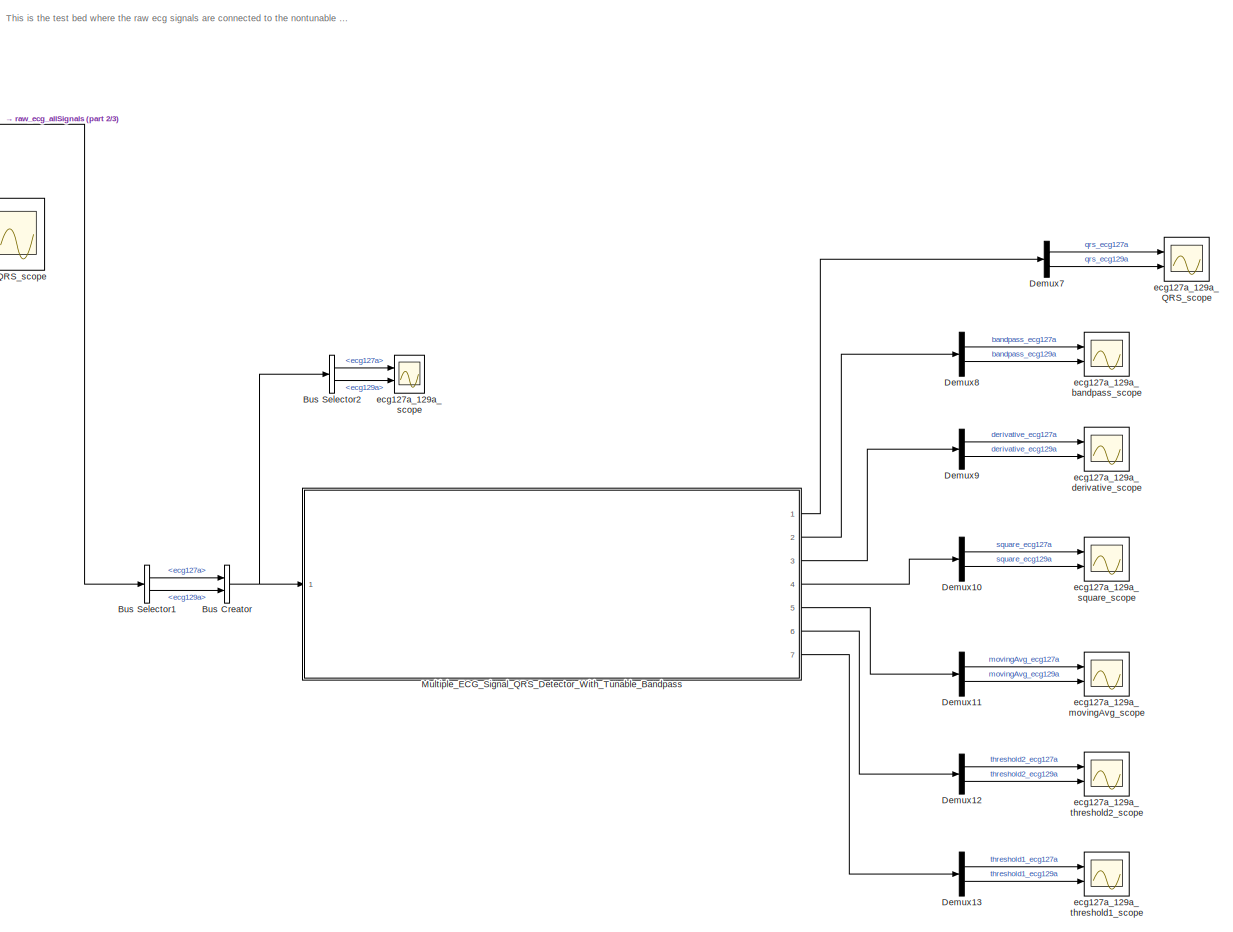
[diagram: root canvas - part 1/3, right side, full height]
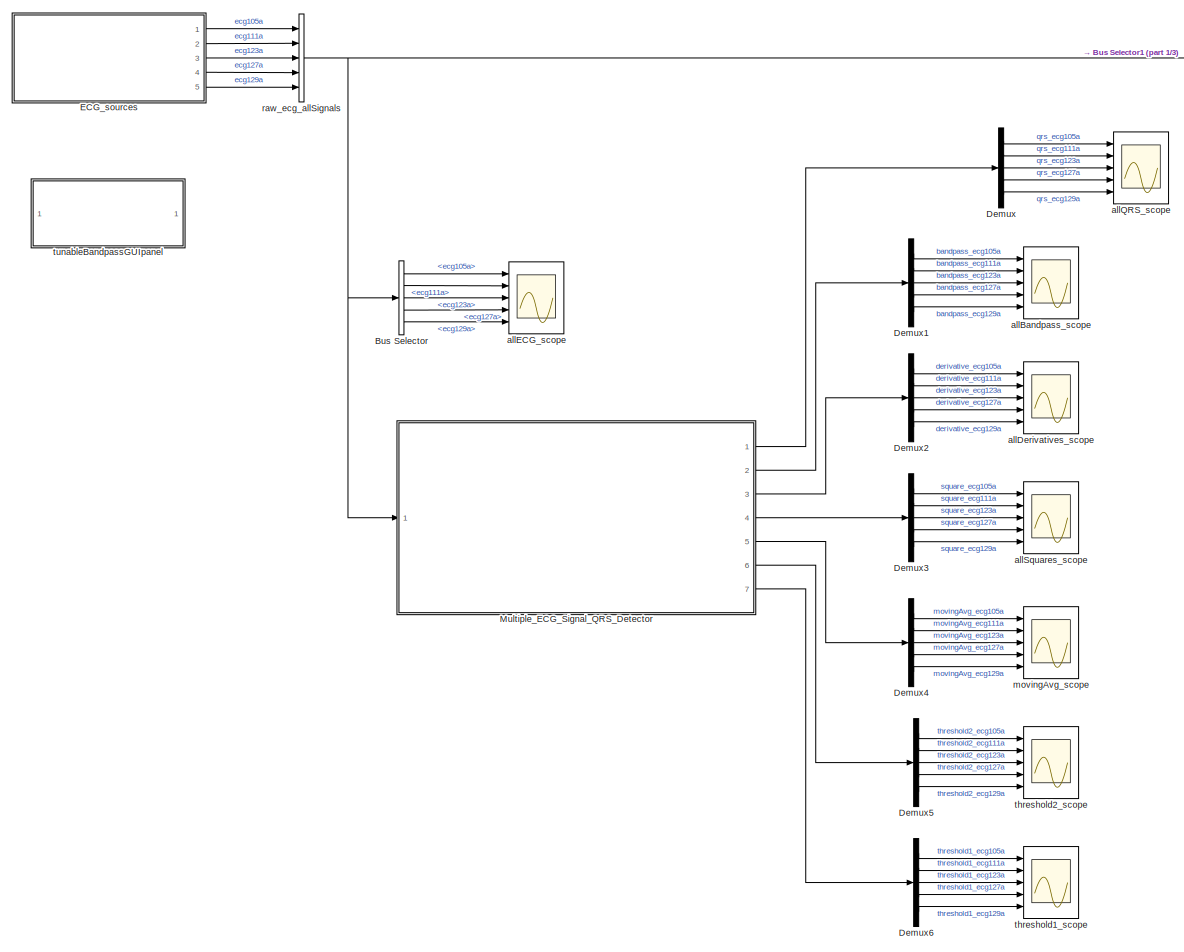
[diagram: root canvas - part 2/3, left side, full height]
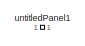
[diagram: root canvas - part 3/3, middle left region]
MODEL slx_71d7068191bd
KIND model
CONFIG AbsTol = auto
CONFIG EnableMultiTasking = off
CONFIG FixedStep = .004
CONFIG MaxStep = auto
CONFIG MinStep = auto
CONFIG RelTol = 1e-3
CONFIG SampleTimeConstraint = Unconstrained
CONFIG SolverName = FixedStepDiscrete
CONFIG StartTime = 0.0
CONFIG StopTime = 60
BLOCK [BusCreator] Bus Creator
  DisplayOption = bar
  InheritFromInputs = on
  Inputs = 2
  NonVirtualBus = on
  OutDataTypeStr = Bus: bottom2_raw_ecg_signals
  Ports = [2, 1]
BLOCK [BusSelector] Bus Selector
  OutputSignals = ecg105a,ecg111a,ecg123a,ecg127a,ecg129a
  Ports = [1, 5]
BLOCK [BusSelector] Bus Selector1
  OutputSignals = ecg127a,ecg129a
  Ports = [1, 2]
BLOCK [BusSelector] Bus Selector2
  OutputSignals = ecg127a,ecg129a
  Ports = [1, 2]
BLOCK [Demux] Demux
  Outputs = 5
  Ports = [1, 5]
BLOCK [Demux] Demux1
  Outputs = 5
  Ports = [1, 5]
BLOCK [Demux] Demux10
  Outputs = 2
  Ports = [1, 2]
BLOCK [Demux] Demux11
  Outputs = 2
  Ports = [1, 2]
BLOCK [Demux] Demux12
  Outputs = 2
  Ports = [1, 2]
BLOCK [Demux] Demux13
  Outputs = 2
  Ports = [1, 2]
BLOCK [Demux] Demux2
  Outputs = 5
  Ports = [1, 5]
BLOCK [Demux] Demux3
  Outputs = 5
  Ports = [1, 5]
BLOCK [Demux] Demux4
  Outputs = 5
  Ports = [1, 5]
BLOCK [Demux] Demux5
  Outputs = 5
  Ports = [1, 5]
BLOCK [Demux] Demux6
  Outputs = 5
  Ports = [1, 5]
BLOCK [Demux] Demux7
  Outputs = 2
  Ports = [1, 2]
BLOCK [Demux] Demux8
  Outputs = 2
  Ports = [1, 2]
BLOCK [Demux] Demux9
  Outputs = 2
  Ports = [1, 2]
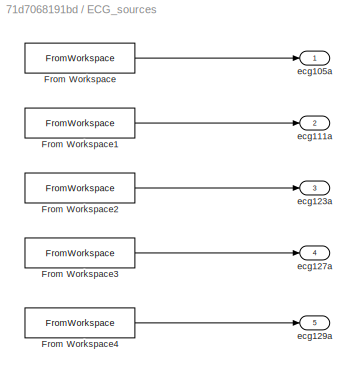
BLOCK [SubSystem] ECG_sources
  Ports = [0, 5]
  RequestExecContextInheritance = off
BLOCK [FromWorkspace] ECG_sources/From Workspace
  VariableName = ts_ecg105a
BLOCK [FromWorkspace] ECG_sources/From Workspace1
  VariableName = ts_ecg111a
BLOCK [FromWorkspace] ECG_sources/From Workspace2
  VariableName = ts_ecg123a
BLOCK [FromWorkspace] ECG_sources/From Workspace3
  VariableName = ts_ecg127a
BLOCK [FromWorkspace] ECG_sources/From Workspace4
  VariableName = ts_ecg129a
BLOCK [Outport] ECG_sources/ecg105a
BLOCK [Outport] ECG_sources/ecg111a
  Port = 2
BLOCK [Outport] ECG_sources/ecg123a
  Port = 3
BLOCK [Outport] ECG_sources/ecg127a
  Port = 4
BLOCK [Outport] ECG_sources/ecg129a
  Port = 5
BLOCK [SubSystem] Multiple_ECG_Signal_QRS_Detector 
  Ports = [1, 7]
  ReferencedSubsystem = Multiple_ECG_Signal_QRS_Detector
  RequestExecContextInheritance = off
  TreatAsAtomicUnit = on
BLOCK [SubSystem] Multiple_ECG_Signal_QRS_Detector_With_Tunable_Bandpass
  Ports = [1, 7]
  ReferencedSubsystem = Multiple_ECG_Signal_QRS_Detector_With_Tunable_Bandpass
  RequestExecContextInheritance = off
  TreatAsAtomicUnit = on
BLOCK [Scope] allBandpass_scope
  Description = Displays the ecg signals with higher frequency and lower frequency components attenuated.for the following signals:\necg105a\necg111a\necg123a\necg127a\necg129a
  Floating = off
  NumInputPorts = 5
  Ports = [5]
  ScopeSpecificationString = Simulink.scopes.TimeScopeBlockCfg('CurrentConfiguration', extmgr.ConfigurationSet(extmgr.Configuration('Core','General UI',true),extmgr.Configuration('Core','Source UI',true),extmgr.Configuration('Sources','WiredSimulink',true,'DataLoggingVariableName','ScopeData2'),extmgr.Configuration('Visuals','Time Domain',true,'SerializedDisplays',{struct('MinYLimReal','-0.2295','MaxYLimReal','0.31455','YLabe...<+4198ch>
BLOCK [Scope] allDerivatives_scope
  Floating = off
  NumInputPorts = 5
  Ports = [5]
  ScopeSpecificationString = Simulink.scopes.TimeScopeBlockCfg('CurrentConfiguration', extmgr.ConfigurationSet(extmgr.Configuration('Core','General UI',true),extmgr.Configuration('Core','Source UI',true),extmgr.Configuration('Sources','WiredSimulink',true,'DataLoggingVariableName','ScopeData3'),extmgr.Configuration('Visuals','Time Domain',true,'SerializedDisplays',{struct('MinYLimReal','-25.17851','MaxYLimReal','24.02142','YL...<+4217ch>
BLOCK [Scope] allECG_scope
  Floating = off
  NumInputPorts = 5
  Ports = [5]
  ScopeSpecificationString = Simulink.scopes.TimeScopeBlockCfg('CurrentConfiguration', extmgr.ConfigurationSet(extmgr.Configuration('Core','General UI',true),extmgr.Configuration('Core','Source UI',true),extmgr.Configuration('Sources','WiredSimulink',true),extmgr.Configuration('Visuals','Time Domain',true,'SerializedDisplays',{struct('MinYLimReal','0.49913','MaxYLimReal','1.50787','YLabelReal','','MinYLimMag','0.49913','MaxYL...<+4148ch>
BLOCK [Scope] allQRS_scope
  Description = Before 3.6 seconds:\nDisplays 0 during startup.\nAfter 3.6 seconds:\nDisplays a 1 when a QRS wave is detected.\nDisplays a 0 when no QRS wave is detected.\nDisplays the QRS wave detection for the following signals:\necg105a\necg111a\necg123a\necg127a\necg129a
  Floating = off
  NumInputPorts = 5
  Ports = [5]
  ScopeSpecificationString = Simulink.scopes.TimeScopeBlockCfg('CurrentConfiguration', extmgr.ConfigurationSet(extmgr.Configuration('Core','General UI',true),extmgr.Configuration('Core','Source UI',true),extmgr.Configuration('Sources','WiredSimulink',true,'DataLoggingVariableName','ScopeData1'),extmgr.Configuration('Visuals','Time Domain',true,'SerializedDisplays',{struct('MinYLimReal','-0.125','MaxYLimReal','1.125','YLabelRe...<+4152ch>
BLOCK [Scope] allSquares_scope
  Floating = off
  NumInputPorts = 5
  Ports = [5]
  ScopeSpecificationString = Simulink.scopes.TimeScopeBlockCfg('CurrentConfiguration', extmgr.ConfigurationSet(extmgr.Configuration('Core','General UI',true),extmgr.Configuration('Core','Source UI',true),extmgr.Configuration('Sources','WiredSimulink',true,'DataLoggingVariableName','ScopeData4'),extmgr.Configuration('Visuals','Time Domain',true,'SerializedDisplays',{struct('MinYLimReal','-51.30094','MaxYLimReal','461.70849','Y...<+4208ch>
BLOCK [Scope] ecg127a_129a_QRS_scope
  Description = Before 3.6 seconds:\nDisplays 0 during startup.\nAfter 3.6 seconds:\nDisplays a 1 when a QRS wave is detected.\nDisplays a 0 when no QRS wave is detected.\nDisplays the QRS wave detection for the following signals:\necg127a\necg129a
  Floating = off
  NumInputPorts = 2
  Ports = [2]
  ScopeSpecificationString = Simulink.scopes.TimeScopeBlockCfg('CurrentConfiguration', extmgr.ConfigurationSet(extmgr.Configuration('Core','General UI',true),extmgr.Configuration('Core','Source UI',true),extmgr.Configuration('Sources','WiredSimulink',true,'DataLoggingVariableName','ScopeData13'),extmgr.Configuration('Visuals','Time Domain',true,'SerializedDisplays',{struct('MinYLimReal','-0.125','MaxYLimReal','1.125','YLabelR...<+2060ch>
BLOCK [Scope] ecg127a_129a_bandpass_scope
  Description = Displays the ecg signals with higher frequency and lower frequency components attenuated.for the following signals:\necg127a\necg129a
  Floating = off
  NumInputPorts = 2
  Ports = [2]
  ScopeSpecificationString = Simulink.scopes.TimeScopeBlockCfg('CurrentConfiguration', extmgr.ConfigurationSet(extmgr.Configuration('Core','General UI',true),extmgr.Configuration('Core','Source UI',true),extmgr.Configuration('Sources','WiredSimulink',true,'DataLoggingVariableName','ScopeData15'),extmgr.Configuration('Visuals','Time Domain',true,'SerializedDisplays',{struct('MinYLimReal','-0.88986','MaxYLimReal','0.94555','YLa...<+2082ch>
BLOCK [Scope] ecg127a_129a_derivative_scope
  Floating = off
  NumInputPorts = 2
  Ports = [2]
  ScopeSpecificationString = Simulink.scopes.TimeScopeBlockCfg('CurrentConfiguration', extmgr.ConfigurationSet(extmgr.Configuration('Core','General UI',true),extmgr.Configuration('Core','Source UI',true),extmgr.Configuration('Sources','WiredSimulink',true,'DataLoggingVariableName','ScopeData14'),extmgr.Configuration('Visuals','Time Domain',true,'SerializedDisplays',{struct('MinYLimReal','-42.79359','MaxYLimReal','39.36542','Y...<+2003ch>
BLOCK [Scope] ecg127a_129a_movingAvg_scope
  Floating = off
  NumInputPorts = 2
  Ports = [2]
  ScopeSpecificationString = Simulink.scopes.TimeScopeBlockCfg('CurrentConfiguration', extmgr.ConfigurationSet(extmgr.Configuration('Core','General UI',true),extmgr.Configuration('Core','Source UI',true),extmgr.Configuration('Sources','WiredSimulink',true,'DataLoggingVariableName','ScopeData9'),extmgr.Configuration('Visuals','Time Domain',true,'SerializedDisplays',{struct('MinYLimReal','-70.68408','MaxYLimReal','636.29492','Y...<+2056ch>
BLOCK [Scope] ecg127a_129a_scope
  Floating = off
  NumInputPorts = 2
  Ports = [2]
  ScopeSpecificationString = Simulink.scopes.TimeScopeBlockCfg('CurrentConfiguration', extmgr.ConfigurationSet(extmgr.Configuration('Core','General UI',true),extmgr.Configuration('Core','Source UI',true),extmgr.Configuration('Sources','WiredSimulink',true,'DataLoggingVariableName','ScopeData1'),extmgr.Configuration('Visuals','Time Domain',true,'SerializedDisplays',{struct('MinYLimReal','-1.895','MaxYLimReal','0.905','YLabelRe...<+2063ch>
BLOCK [Scope] ecg127a_129a_square_scope
  Floating = off
  NumInputPorts = 2
  Ports = [2]
  ScopeSpecificationString = Simulink.scopes.TimeScopeBlockCfg('CurrentConfiguration', extmgr.ConfigurationSet(extmgr.Configuration('Core','General UI',true),extmgr.Configuration('Core','Source UI',true),extmgr.Configuration('Sources','WiredSimulink',true,'DataLoggingVariableName','ScopeData8'),extmgr.Configuration('Visuals','Time Domain',true,'SerializedDisplays',{struct('MinYLimReal','-149.4521','MaxYLimReal','1345.06888','...<+2035ch>
BLOCK [Scope] ecg127a_129a_threshold1_scope
  Floating = off
  NumInputPorts = 2
  Ports = [2]
  ScopeSpecificationString = Simulink.scopes.TimeScopeBlockCfg('CurrentConfiguration', extmgr.ConfigurationSet(extmgr.Configuration('Core','General UI',true),extmgr.Configuration('Core','Source UI',true),extmgr.Configuration('Sources','WiredSimulink',true,'DataLoggingVariableName','ScopeData11'),extmgr.Configuration('Visuals','Time Domain',true,'SerializedDisplays',{struct('MinYLimReal','-0.125','MaxYLimReal','1.125','YLabelR...<+2434ch>
BLOCK [Scope] ecg127a_129a_threshold2_scope
  Floating = off
  NumInputPorts = 2
  Ports = [2]
  ScopeSpecificationString = Simulink.scopes.TimeScopeBlockCfg('CurrentConfiguration', extmgr.ConfigurationSet(extmgr.Configuration('Core','General UI',true),extmgr.Configuration('Core','Source UI',true),extmgr.Configuration('Sources','WiredSimulink',true,'DataLoggingVariableName','ScopeData10'),extmgr.Configuration('Visuals','Time Domain',true,'SerializedDisplays',{struct('MinYLimReal','-0.125','MaxYLimReal','1.125','YLabelR...<+2434ch>
BLOCK [Scope] movingAvg_scope
  Floating = off
  NumInputPorts = 5
  Ports = [5]
  ScopeSpecificationString = Simulink.scopes.TimeScopeBlockCfg('CurrentConfiguration', extmgr.ConfigurationSet(extmgr.Configuration('Core','General UI',true),extmgr.Configuration('Core','Source UI',true),extmgr.Configuration('Sources','WiredSimulink',true,'DataLoggingVariableName','ScopeData5'),extmgr.Configuration('Visuals','Time Domain',true,'SerializedDisplays',{struct('MinYLimReal','-9.5909','MaxYLimReal','86.31813','YLab...<+4237ch>
BLOCK [BusCreator] raw_ecg_allSignals
  DisplayOption = bar
  InheritFromInputs = on
  Inputs = 5
  NonVirtualBus = on
  OutDataTypeStr = Bus: raw_ecg_signals
  Ports = [5, 1]
BLOCK [Scope] threshold1_scope
  Floating = off
  NumInputPorts = 5
  Ports = [5]
  ScopeSpecificationString = Simulink.scopes.TimeScopeBlockCfg('CurrentConfiguration', extmgr.ConfigurationSet(extmgr.Configuration('Core','General UI',true),extmgr.Configuration('Core','Source UI',true),extmgr.Configuration('Sources','WiredSimulink',true,'DataLoggingVariableName','ScopeData7'),extmgr.Configuration('Visuals','Time Domain',true,'SerializedDisplays',{struct('MinYLimReal','-0.125','MaxYLimReal','1.125','YLabelRe...<+4208ch>
BLOCK [Scope] threshold2_scope
  Floating = off
  NumInputPorts = 5
  Ports = [5]
  ScopeSpecificationString = Simulink.scopes.TimeScopeBlockCfg('CurrentConfiguration', extmgr.ConfigurationSet(extmgr.Configuration('Core','General UI',true),extmgr.Configuration('Core','Source UI',true),extmgr.Configuration('Sources','WiredSimulink',true,'DataLoggingVariableName','ScopeData6'),extmgr.Configuration('Visuals','Time Domain',true,'SerializedDisplays',{struct('MinYLimReal','-0.125','MaxYLimReal','1.125','YLabelRe...<+4283ch>
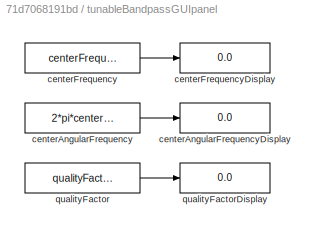
BLOCK [SubSystem] tunableBandpassGUIpanel
  Ports = []
  RequestExecContextInheritance = off
BLOCK [Constant] tunableBandpassGUIpanel/centerAngularFrequency
  Value = 2*pi*centerFrequency
BLOCK [Display] tunableBandpassGUIpanel/centerAngularFrequencyDisplay
  Decimation = 1
  Ports = [1]
BLOCK [Constant] tunableBandpassGUIpanel/centerFrequency
  Value = centerFrequency
BLOCK [Display] tunableBandpassGUIpanel/centerFrequencyDisplay
  Decimation = 1
  Ports = [1]
BLOCK [Constant] tunableBandpassGUIpanel/qualityFactor
  Value = qualityFactor
BLOCK [Display] tunableBandpassGUIpanel/qualityFactorDisplay
  Decimation = 1
  Ports = [1]
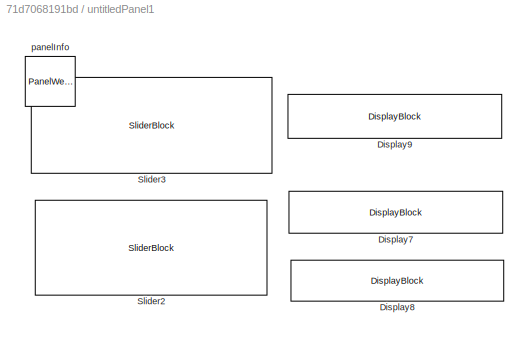
BLOCK [SubSystem] untitledPanel1
  IsWebBlockPanel = on
  Ports = []
  RequestExecContextInheritance = off
  Tag = HiddenForWebPanel
BLOCK [DisplayBlock] untitledPanel1/Display7
  Format = short
  PanelInfo = {"panelId":"panelId-ca1233c5-e97a-449b-8b56-ba92016d6b7f","type":"panelChild","version":"2019b","zIndex":1500008}
  Tag = HiddenForWebPanel
  Transparency = 1
BLOCK [DisplayBlock] untitledPanel1/Display8
  Format = short
  PanelInfo = {"panelId":"panelId-ca1233c5-e97a-449b-8b56-ba92016d6b7f","type":"panelChild","version":"2019b","zIndex":1500010}
  Tag = HiddenForWebPanel
  Transparency = 1
BLOCK [DisplayBlock] untitledPanel1/Display9
  Format = short
  PanelInfo = {"panelId":"panelId-ca1233c5-e97a-449b-8b56-ba92016d6b7f","type":"panelChild","version":"2019b","zIndex":1500006}
  Tag = HiddenForWebPanel
  Transparency = 1
BLOCK [SliderBlock] untitledPanel1/Slider2
  PanelInfo = {"panelId":"panelId-ca1233c5-e97a-449b-8b56-ba92016d6b7f","type":"panelChild","version":"2019b","zIndex":1500004}
  ScaleMax = 20
  ScaleMin = 4
  Tag = HiddenForWebPanel
BLOCK [SliderBlock] untitledPanel1/Slider3
  PanelInfo = {"panelId":"panelId-ca1233c5-e97a-449b-8b56-ba92016d6b7f","type":"panelChild","version":"2019b","zIndex":1500002}
  ScaleMax = 18
  ScaleMin = 0.1
  Tag = HiddenForWebPanel
BLOCK [PanelWebBlock] untitledPanel1/panelInfo
  PanelInfo = {"compacted":false,"height":307,"isActiveTab":true,"left":44,"name":"Panel1","panelId":"panelId-ca1233c5-e97a-449b-8b56-ba92016d6b7f","tabIndex":0,"tabbedSetId":"tabbedSet5577055327","top":316,"type":"panel","version":"2019b","visible":true,"width":516,"zIndex":1500004}
  PanelSnapshot = iVBORw0KGgoAAAANSUhEUgAAAgQAAAEzCAYAAABOlRseAAAACXBIWXMAAAsTAAALEwEAmpwYAAAgAElEQVR4nO3dd1gU1/4/8M8sW1jYZekdpDdBRY3B3jVRoxeJYsOOGg1ejZqbkGtJufEaNVeTmGaKv0gsWIlGCZpYYyQJCioIiAIqILA0qVvn94cuX9riIosgvF/Pw/PI7Mw5Z+aMzHvPnNll6LHw8+xQhmgNEfUhIlsCAACAruIBQ0S06DwbSUT/aefGAAAAQDthHo8MnOEQqYZ0YwsCxBUcjlpupFarue3dOAAAAGhbHA5Hqebwq7iPbxMwQ7qx+T2Ni03USrWBur1bBwAAAM+EWq3mkrrGhEuP5gxQgLjCQK1UG/D4/AqRWJzH4XCU7dxG...<+22848ch>
  Tag = HiddenForWebPanel
ANNOTATION (root): This is the test bed where the raw ecg signals are connected to the nontunable and tunable bandpass QRS detectors, and the results of the QRS detectors are displayed using scopes. Additionally, display scopes are provided for each stage of the Pan-Tompkins QRS Detection Algorithm. The stages displayed are post bandpass, post derivative, post squaring, post moving average, post threshold 2, post th...<+48ch>
NET Bus Creator:1 -> Bus Selector2:1, Multiple_ECG_Signal_QRS_Detector_With_Tunable_Bandpass:1
LINE Bus Selector1:1 -> Bus Creator:1
LINE Bus Selector1:2 -> Bus Creator:2
LINE Bus Selector2:1 -> ecg127a_129a_scope:1
LINE Bus Selector2:2 -> ecg127a_129a_scope:2
LINE Bus Selector:1 -> allECG_scope:1
LINE Bus Selector:2 -> allECG_scope:2
LINE Bus Selector:3 -> allECG_scope:3
LINE Bus Selector:4 -> allECG_scope:4
LINE Bus Selector:5 -> allECG_scope:5
LINE Demux10:1 -> ecg127a_129a_square_scope:1
LINE Demux10:2 -> ecg127a_129a_square_scope:2
LINE Demux11:1 -> ecg127a_129a_movingAvg_scope:1
LINE Demux11:2 -> ecg127a_129a_movingAvg_scope:2
LINE Demux12:1 -> ecg127a_129a_threshold2_scope:1
LINE Demux12:2 -> ecg127a_129a_threshold2_scope:2
LINE Demux13:1 -> ecg127a_129a_threshold1_scope:1
LINE Demux13:2 -> ecg127a_129a_threshold1_scope:2
LINE Demux1:1 -> allBandpass_scope:1
LINE Demux1:2 -> allBandpass_scope:2
LINE Demux1:3 -> allBandpass_scope:3
LINE Demux1:4 -> allBandpass_scope:4
LINE Demux1:5 -> allBandpass_scope:5
LINE Demux2:1 -> allDerivatives_scope:1
LINE Demux2:2 -> allDerivatives_scope:2
LINE Demux2:3 -> allDerivatives_scope:3
LINE Demux2:4 -> allDerivatives_scope:4
LINE Demux2:5 -> allDerivatives_scope:5
LINE Demux3:1 -> allSquares_scope:1
LINE Demux3:2 -> allSquares_scope:2
LINE Demux3:3 -> allSquares_scope:3
LINE Demux3:4 -> allSquares_scope:4
LINE Demux3:5 -> allSquares_scope:5
LINE Demux4:1 -> movingAvg_scope:1
LINE Demux4:2 -> movingAvg_scope:2
LINE Demux4:3 -> movingAvg_scope:3
LINE Demux4:4 -> movingAvg_scope:4
LINE Demux4:5 -> movingAvg_scope:5
LINE Demux5:1 -> threshold2_scope:1
LINE Demux5:2 -> threshold2_scope:2
LINE Demux5:3 -> threshold2_scope:3
LINE Demux5:4 -> threshold2_scope:4
LINE Demux5:5 -> threshold2_scope:5
LINE Demux6:1 -> threshold1_scope:1
LINE Demux6:2 -> threshold1_scope:2
LINE Demux6:3 -> threshold1_scope:3
LINE Demux6:4 -> threshold1_scope:4
LINE Demux6:5 -> threshold1_scope:5
LINE Demux7:1 -> ecg127a_129a_QRS_scope:1
LINE Demux7:2 -> ecg127a_129a_QRS_scope:2
LINE Demux8:1 -> ecg127a_129a_bandpass_scope:1
LINE Demux8:2 -> ecg127a_129a_bandpass_scope:2
LINE Demux9:1 -> ecg127a_129a_derivative_scope:1
LINE Demux9:2 -> ecg127a_129a_derivative_scope:2
LINE Demux:1 -> allQRS_scope:1
LINE Demux:2 -> allQRS_scope:2
LINE Demux:3 -> allQRS_scope:3
LINE Demux:4 -> allQRS_scope:4
LINE Demux:5 -> allQRS_scope:5
LINE ECG_sources/From Workspace1:1 -> ECG_sources/ecg111a:1
LINE ECG_sources/From Workspace2:1 -> ECG_sources/ecg123a:1
LINE ECG_sources/From Workspace3:1 -> ECG_sources/ecg127a:1
LINE ECG_sources/From Workspace4:1 -> ECG_sources/ecg129a:1
LINE ECG_sources/From Workspace:1 -> ECG_sources/ecg105a:1
LINE ECG_sources:1 -> raw_ecg_allSignals:1
LINE ECG_sources:2 -> raw_ecg_allSignals:2
LINE ECG_sources:3 -> raw_ecg_allSignals:3
LINE ECG_sources:4 -> raw_ecg_allSignals:4
LINE ECG_sources:5 -> raw_ecg_allSignals:5
LINE Multiple_ECG_Signal_QRS_Detector :1 -> Demux:1
LINE Multiple_ECG_Signal_QRS_Detector :2 -> Demux1:1
LINE Multiple_ECG_Signal_QRS_Detector :3 -> Demux2:1
LINE Multiple_ECG_Signal_QRS_Detector :4 -> Demux3:1
LINE Multiple_ECG_Signal_QRS_Detector :5 -> Demux4:1
LINE Multiple_ECG_Signal_QRS_Detector :6 -> Demux5:1
LINE Multiple_ECG_Signal_QRS_Detector :7 -> Demux6:1
LINE Multiple_ECG_Signal_QRS_Detector_With_Tunable_Bandpass:1 -> Demux7:1
LINE Multiple_ECG_Signal_QRS_Detector_With_Tunable_Bandpass:2 -> Demux8:1
LINE Multiple_ECG_Signal_QRS_Detector_With_Tunable_Bandpass:3 -> Demux9:1
LINE Multiple_ECG_Signal_QRS_Detector_With_Tunable_Bandpass:4 -> Demux10:1
LINE Multiple_ECG_Signal_QRS_Detector_With_Tunable_Bandpass:5 -> Demux11:1
LINE Multiple_ECG_Signal_QRS_Detector_With_Tunable_Bandpass:6 -> Demux12:1
LINE Multiple_ECG_Signal_QRS_Detector_With_Tunable_Bandpass:7 -> Demux13:1
NET raw_ecg_allSignals:1 -> Bus Selector1:1, Bus Selector:1, Multiple_ECG_Signal_QRS_Detector :1
LINE tunableBandpassGUIpanel/centerAngularFrequency:1 -> tunableBandpassGUIpanel/centerAngularFrequencyDisplay:1
LINE tunableBandpassGUIpanel/centerFrequency:1 -> tunableBandpassGUIpanel/centerFrequencyDisplay:1
LINE tunableBandpassGUIpanel/qualityFactor:1 -> tunableBandpassGUIpanel/qualityFactorDisplay:1
note: NET lines group one-source signal fan-out (src -> all destinations, sorted); 1:1 wires keep LINE
